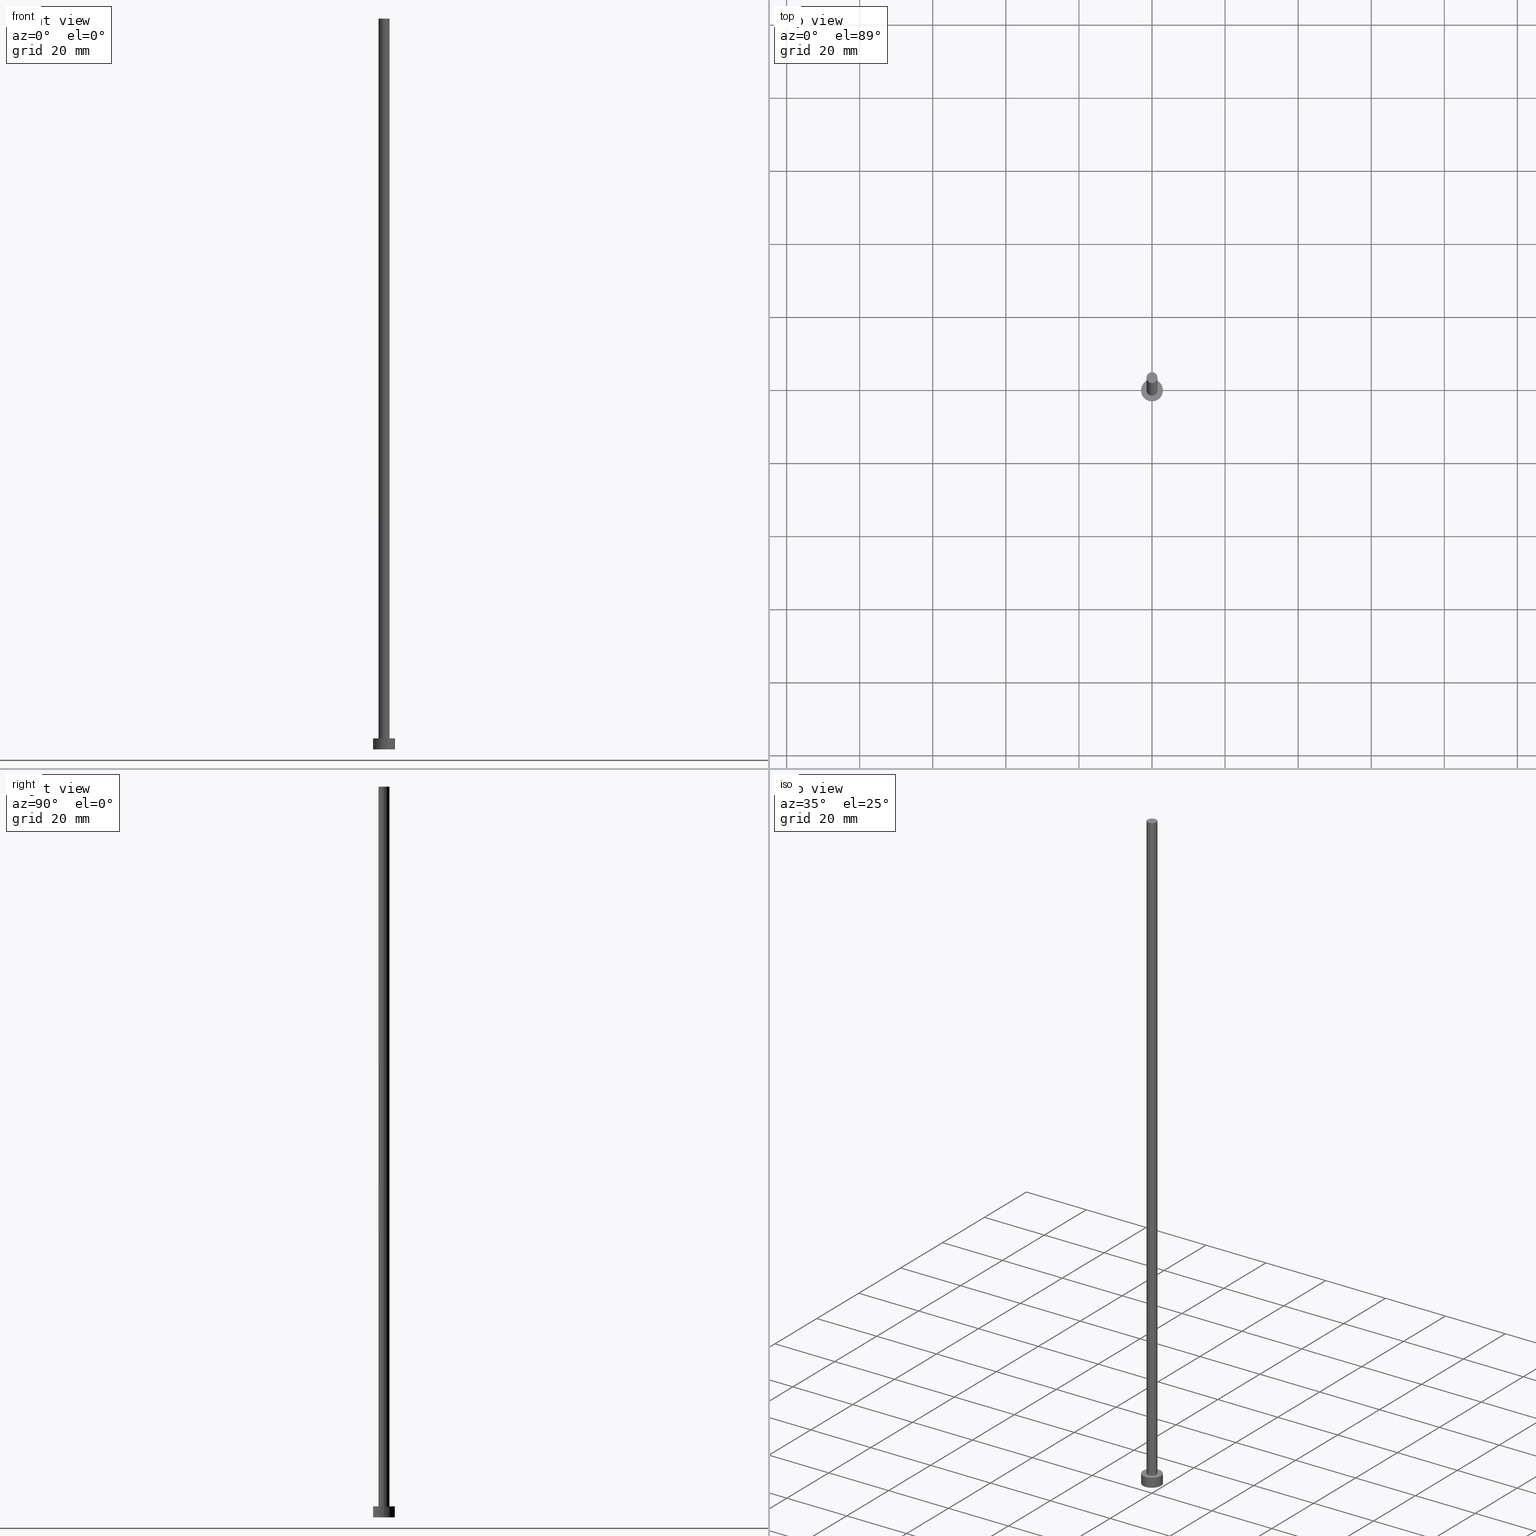
[diagram: canonical four-view strip — front | top / right | iso, engineering-drawing reading convention]
A machine part, canonical four-view strip (front | top / right | iso — engineering-drawing reading convention). The complete STEP part file that produces these views, byte-faithful:
ISO-10303-21;
HEADER;
FILE_DESCRIPTION (( 'STEP AP203' ),
    '1' );
FILE_NAME ('0927.STEP',
    '2023-02-13T15:37:24',
    ( '' ),
    ( '' ),
    'SwSTEP 2.0',
    'SolidWorks 2019',
    '' );
FILE_SCHEMA (( 'CONFIG_CONTROL_DESIGN' ));
ENDSEC;

DATA;
#1 = DATE_AND_TIME ( #216, #170 ) ;
#2 = ORIENTED_EDGE ( 'NONE', *, *, #190, .T. ) ;
#3 = CIRCLE ( 'NONE', #89, 1.500000000000000222 ) ;
#4 = PERSON_AND_ORGANIZATION ( #114, #75 ) ;
#5 = CARTESIAN_POINT ( 'NONE',  ( 1.500000000000000222, 1.836970198721030181E-16, 200.0000000000000000 ) ) ;
#6 = VERTEX_POINT ( 'NONE', #5 ) ;
#7 = DIRECTION ( 'NONE',  ( 1.000000000000000000, 0.000000000000000000, 0.000000000000000000 ) ) ;
#8 = DIRECTION ( 'NONE',  ( -1.000000000000000000, 0.000000000000000000, 0.000000000000000000 ) ) ;
#9 = APPROVAL_PERSON_ORGANIZATION ( #172, #206, #103 ) ;
#10 = DIRECTION ( 'NONE',  ( 0.000000000000000000, 0.000000000000000000, 1.000000000000000000 ) ) ;
#11 = CARTESIAN_POINT ( 'NONE',  ( -1.500000000000000222, 0.000000000000000000, 200.0000000000000000 ) ) ;
#12 = CARTESIAN_POINT ( 'NONE',  ( -1.500000000000000222, 0.000000000000000000, 200.0000000000000000 ) ) ;
#13 = AXIS2_PLACEMENT_3D ( 'NONE', #248, #10, #78 ) ;
#14 = EDGE_LOOP ( 'NONE', ( #128, #155 ) ) ;
#15 = APPROVAL_STATUS ( 'not_yet_approved' ) ;
#16 = ORIENTED_EDGE ( 'NONE', *, *, #72, .T. ) ;
#17 = DIRECTION ( 'NONE',  ( -0.000000000000000000, -0.000000000000000000, -1.000000000000000000 ) ) ;
#18 = DIRECTION ( 'NONE',  ( -0.000000000000000000, -0.000000000000000000, -1.000000000000000000 ) ) ;
#19 = EDGE_CURVE ( 'NONE', #68, #195, #31, .T. ) ;
#20 = ORIENTED_EDGE ( 'NONE', *, *, #108, .F. ) ;
#21 = COORDINATED_UNIVERSAL_TIME_OFFSET ( 1, 0, .AHEAD. ) ;
#22 = CIRCLE ( 'NONE', #166, 3.000000000000000444 ) ;
#23 = CC_DESIGN_PERSON_AND_ORGANIZATION_ASSIGNMENT ( #111, #113, ( #231 ) ) ;
#24 = ORIENTED_EDGE ( 'NONE', *, *, #108, .T. ) ;
#25 = CARTESIAN_POINT ( 'NONE',  ( 0.000000000000000000, 0.000000000000000000, 0.000000000000000000 ) ) ;
#26 = EDGE_CURVE ( 'NONE', #40, #90, #22, .T. ) ;
#27 = DIRECTION ( 'NONE',  ( 1.000000000000000000, 0.000000000000000000, -0.000000000000000000 ) ) ;
#28 = CYLINDRICAL_SURFACE ( 'NONE', #236, 3.000000000000000444 ) ;
#29 = APPROVAL ( #178, 'NEUR�EN�' ) ;
#30 = PLANE ( 'NONE',  #185 ) ;
#31 = LINE ( 'NONE', #11, #122 ) ;
#32 = APPROVAL_DATE_TIME ( #87, #206 ) ;
#33 = PRODUCT_DEFINITION_SHAPE ( 'NONE', 'NONE',  #219 ) ;
#34 = APPROVAL_ROLE ( '' ) ;
#35 = DIRECTION ( 'NONE',  ( 1.000000000000000000, 0.000000000000000000, 0.000000000000000000 ) ) ;
#36 = ADVANCED_FACE ( 'NONE', ( #117, #115 ), #30, .T. ) ;
#37 = COORDINATED_UNIVERSAL_TIME_OFFSET ( 1, 0, .AHEAD. ) ;
#38 = ORIENTED_EDGE ( 'NONE', *, *, #210, .F. ) ;
#39 = ORIENTED_EDGE ( 'NONE', *, *, #85, .T. ) ;
#40 = VERTEX_POINT ( 'NONE', #143 ) ;
#41 = CIRCLE ( 'NONE', #186, 3.000000000000000444 ) ;
#42 = DIRECTION ( 'NONE',  ( 0.000000000000000000, 0.000000000000000000, 1.000000000000000000 ) ) ;
#43 = CYLINDRICAL_SURFACE ( 'NONE', #66, 3.000000000000000444 ) ;
#44 = DIRECTION ( 'NONE',  ( -0.000000000000000000, -0.000000000000000000, -1.000000000000000000 ) ) ;
#45 = SECURITY_CLASSIFICATION ( '', '', #56 ) ;
#46 = CARTESIAN_POINT ( 'NONE',  ( 3.000000000000000444, 3.673940397442060361E-16, 3.000000000000000000 ) ) ;
#47 = CARTESIAN_POINT ( 'NONE',  ( 0.000000000000000000, 0.000000000000000000, 200.0000000000000000 ) ) ;
#48 =( LENGTH_UNIT ( ) NAMED_UNIT ( * ) SI_UNIT ( .MILLI., .METRE. ) );
#49 = ADVANCED_BREP_SHAPE_REPRESENTATION ( '0927', ( #83, #196 ), #192 ) ;
#50 = CARTESIAN_POINT ( 'NONE',  ( -1.500000000000000222, 0.000000000000000000, 3.000000000000000000 ) ) ;
#51 = CC_DESIGN_PERSON_AND_ORGANIZATION_ASSIGNMENT ( #4, #106, ( #45 ) ) ;
#52 = DATE_TIME_ROLE ( 'creation_date' ) ;
#53 = DIRECTION ( 'NONE',  ( -1.000000000000000000, 0.000000000000000000, 0.000000000000000000 ) ) ;
#54 = DATE_TIME_ROLE ( 'classification_date' ) ;
#55 = ADVANCED_FACE ( 'NONE', ( #60 ), #43, .T. ) ;
#56 = SECURITY_CLASSIFICATION_LEVEL ( 'unclassified' ) ;
#57 = CARTESIAN_POINT ( 'NONE',  ( 0.000000000000000000, 0.000000000000000000, 200.0000000000000000 ) ) ;
#58 = DIRECTION ( 'NONE',  ( 0.000000000000000000, 0.000000000000000000, 1.000000000000000000 ) ) ;
#59 = EDGE_CURVE ( 'NONE', #199, #110, #253, .T. ) ;
#60 = FACE_OUTER_BOUND ( 'NONE', #214, .T. ) ;
#61 = CARTESIAN_POINT ( 'NONE',  ( 0.000000000000000000, 0.000000000000000000, 0.000000000000000000 ) ) ;
#62 = PERSON_AND_ORGANIZATION_ROLE ( 'creator' ) ;
#63 = APPLICATION_CONTEXT ( 'configuration controlled 3d designs of mechanical parts and assemblies' ) ;
#64 = CYLINDRICAL_SURFACE ( 'NONE', #135, 1.500000000000000222 ) ;
#65 = APPROVAL_PERSON_ORGANIZATION ( #71, #29, #198 ) ;
#66 = AXIS2_PLACEMENT_3D ( 'NONE', #102, #204, #187 ) ;
#67 = EDGE_CURVE ( 'NONE', #149, #195, #116, .T. ) ;
#68 = VERTEX_POINT ( 'NONE', #12 ) ;
#69 = DATE_AND_TIME ( #94, #146 ) ;
#70 = ORIENTED_EDGE ( 'NONE', *, *, #201, .F. ) ;
#71 = PERSON_AND_ORGANIZATION ( #114, #75 ) ;
#72 = EDGE_CURVE ( 'NONE', #110, #199, #156, .T. ) ;
#73 = CARTESIAN_POINT ( 'NONE',  ( 0.000000000000000000, 0.000000000000000000, 3.000000000000000000 ) ) ;
#74 = CARTESIAN_POINT ( 'NONE',  ( 0.000000000000000000, 0.000000000000000000, 3.000000000000000000 ) ) ;
#75 = ORGANIZATION ( 'NEUR�EN�', 'NEUR�EN�', '' ) ;
#76 = DIRECTION ( 'NONE',  ( 1.000000000000000000, 0.000000000000000000, 0.000000000000000000 ) ) ;
#77 = CARTESIAN_POINT ( 'NONE',  ( 0.000000000000000000, 0.000000000000000000, 3.000000000000000000 ) ) ;
#78 = DIRECTION ( 'NONE',  ( 1.000000000000000000, 0.000000000000000000, 0.000000000000000000 ) ) ;
#79 = DIRECTION ( 'NONE',  ( 0.000000000000000000, 0.000000000000000000, 1.000000000000000000 ) ) ;
#80 = CC_DESIGN_PERSON_AND_ORGANIZATION_ASSIGNMENT ( #138, #177, ( #231 ) ) ;
#81 = CLOSED_SHELL ( 'NONE', ( #142, #55, #163, #36, #118, #249, #112 ) ) ;
#82 = DIRECTION ( 'NONE',  ( -0.000000000000000000, -0.000000000000000000, -1.000000000000000000 ) ) ;
#83 = MANIFOLD_SOLID_BREP ( 'P�idat vysunut�m3', #81 ) ;
#84 = FACE_OUTER_BOUND ( 'NONE', #229, .T. ) ;
#85 = EDGE_CURVE ( 'NONE', #90, #199, #145, .T. ) ;
#86 = LOCAL_TIME ( 16, 37, 24.00000000000000000, #104 ) ;
#87 = DATE_AND_TIME ( #188, #180 ) ;
#88 = DIRECTION ( 'NONE',  ( 1.000000000000000000, 0.000000000000000000, 0.000000000000000000 ) ) ;
#89 = AXIS2_PLACEMENT_3D ( 'NONE', #191, #148, #35 ) ;
#90 = VERTEX_POINT ( 'NONE', #46 ) ;
#91 = CC_DESIGN_PERSON_AND_ORGANIZATION_ASSIGNMENT ( #232, #171, ( #228 ) ) ;
#92 = CALENDAR_DATE ( 2023, 13, 2 ) ;
#93 = ORIENTED_EDGE ( 'NONE', *, *, #59, .T. ) ;
#94 = CALENDAR_DATE ( 2023, 13, 2 ) ;
#95 = ORIENTED_EDGE ( 'NONE', *, *, #67, .F. ) ;
#96 = AXIS2_PLACEMENT_3D ( 'NONE', #205, #244, #97 ) ;
#97 = DIRECTION ( 'NONE',  ( 1.000000000000000000, 0.000000000000000000, -0.000000000000000000 ) ) ;
#98 = CARTESIAN_POINT ( 'NONE',  ( 0.000000000000000000, 0.000000000000000000, 3.000000000000000000 ) ) ;
#99 = APPLICATION_CONTEXT ( 'configuration controlled 3d designs of mechanical parts and assemblies' ) ;
#100 = DIRECTION ( 'NONE',  ( 1.000000000000000000, 0.000000000000000000, 0.000000000000000000 ) ) ;
#101 = DIRECTION ( 'NONE',  ( 0.000000000000000000, 0.000000000000000000, 1.000000000000000000 ) ) ;
#102 = CARTESIAN_POINT ( 'NONE',  ( 0.000000000000000000, 0.000000000000000000, 3.000000000000000000 ) ) ;
#103 = APPROVAL_ROLE ( '' ) ;
#104 = COORDINATED_UNIVERSAL_TIME_OFFSET ( 1, 0, .AHEAD. ) ;
#105 = ORIENTED_EDGE ( 'NONE', *, *, #210, .T. ) ;
#106 = PERSON_AND_ORGANIZATION_ROLE ( 'classification_officer' ) ;
#107 = ORIENTED_EDGE ( 'NONE', *, *, #26, .F. ) ;
#108 = EDGE_CURVE ( 'NONE', #90, #40, #41, .T. ) ;
#109 = CC_DESIGN_SECURITY_CLASSIFICATION ( #45, ( #231 ) ) ;
#110 = VERTEX_POINT ( 'NONE', #123 ) ;
#111 = PERSON_AND_ORGANIZATION ( #114, #75 ) ;
#112 = ADVANCED_FACE ( 'NONE', ( #162 ), #121, .T. ) ;
#113 = PERSON_AND_ORGANIZATION_ROLE ( 'design_supplier' ) ;
#114 = PERSON ( 'NEUR�EN�', 'NEUR�EN�', 'NEUR�EN�', ('NEUR�EN�'), ('NEUR�EN�'), ('NEUR�EN�') ) ;
#115 = FACE_OUTER_BOUND ( 'NONE', #243, .T. ) ;
#116 = CIRCLE ( 'NONE', #13, 1.500000000000000222 ) ;
#117 = FACE_BOUND ( 'NONE', #203, .T. ) ;
#118 = ADVANCED_FACE ( 'NONE', ( #207 ), #208, .F. ) ;
#119 = DIRECTION ( 'NONE',  ( 1.000000000000000000, 0.000000000000000000, -0.000000000000000000 ) ) ;
#120 = APPROVAL_PERSON_ORGANIZATION ( #129, #151, #34 ) ;
#121 = PLANE ( 'NONE',  #96 ) ;
#122 = VECTOR ( 'NONE', #221, 1000.000000000000000 ) ;
#123 = CARTESIAN_POINT ( 'NONE',  ( -3.000000000000000444, 0.000000000000000000, 0.000000000000000000 ) ) ;
#124 = CARTESIAN_POINT ( 'NONE',  ( 0.000000000000000000, 0.000000000000000000, 0.000000000000000000 ) ) ;
#125 = EDGE_LOOP ( 'NONE', ( #139, #179 ) ) ;
#126 = COORDINATED_UNIVERSAL_TIME_OFFSET ( 1, 0, .AHEAD. ) ;
#127 = CC_DESIGN_DATE_AND_TIME_ASSIGNMENT ( #251, #52, ( #219 ) ) ;
#128 = ORIENTED_EDGE ( 'NONE', *, *, #227, .T. ) ;
#129 = PERSON_AND_ORGANIZATION ( #114, #75 ) ;
#130 = DIRECTION ( 'NONE',  ( 1.000000000000000000, 0.000000000000000000, 0.000000000000000000 ) ) ;
#131 = LOCAL_TIME ( 16, 37, 24.00000000000000000, #126 ) ;
#132 = CARTESIAN_POINT ( 'NONE',  ( 0.000000000000000000, 0.000000000000000000, 3.000000000000000000 ) ) ;
#133 = CC_DESIGN_PERSON_AND_ORGANIZATION_ASSIGNMENT ( #250, #62, ( #219 ) ) ;
#134 = ORIENTED_EDGE ( 'NONE', *, *, #67, .T. ) ;
#135 = AXIS2_PLACEMENT_3D ( 'NONE', #215, #17, #53 ) ;
#136 = CC_DESIGN_DATE_AND_TIME_ASSIGNMENT ( #1, #54, ( #45 ) ) ;
#137 = AXIS2_PLACEMENT_3D ( 'NONE', #25, #247, #167 ) ;
#138 = PERSON_AND_ORGANIZATION ( #114, #75 ) ;
#139 = ORIENTED_EDGE ( 'NONE', *, *, #72, .F. ) ;
#140 = CYLINDRICAL_SURFACE ( 'NONE', #222, 1.500000000000000222 ) ;
#141 = VECTOR ( 'NONE', #18, 1000.000000000000000 ) ;
#142 = ADVANCED_FACE ( 'NONE', ( #165 ), #140, .T. ) ;
#143 = CARTESIAN_POINT ( 'NONE',  ( -3.000000000000000444, 0.000000000000000000, 3.000000000000000000 ) ) ;
#144 = FACE_OUTER_BOUND ( 'NONE', #239, .T. ) ;
#145 = LINE ( 'NONE', #169, #235 ) ;
#146 = LOCAL_TIME ( 16, 37, 24.00000000000000000, #157 ) ;
#147 = DIRECTION ( 'NONE',  ( -0.000000000000000000, -0.000000000000000000, -1.000000000000000000 ) ) ;
#148 = DIRECTION ( 'NONE',  ( 0.000000000000000000, 0.000000000000000000, 1.000000000000000000 ) ) ;
#149 = VERTEX_POINT ( 'NONE', #226 ) ;
#150 = CARTESIAN_POINT ( 'NONE',  ( 1.500000000000000222, 1.836970198721030181E-16, 200.0000000000000000 ) ) ;
#151 = APPROVAL ( #213, 'NEUR�EN�' ) ;
#152 = ORIENTED_EDGE ( 'NONE', *, *, #201, .T. ) ;
#153 =( NAMED_UNIT ( * ) PLANE_ANGLE_UNIT ( ) SI_UNIT ( $, .RADIAN. ) );
#154 =( NAMED_UNIT ( * ) SI_UNIT ( $, .STERADIAN. ) SOLID_ANGLE_UNIT ( ) );
#155 = ORIENTED_EDGE ( 'NONE', *, *, #168, .T. ) ;
#156 = CIRCLE ( 'NONE', #175, 3.000000000000000444 ) ;
#157 = COORDINATED_UNIVERSAL_TIME_OFFSET ( 1, 0, .AHEAD. ) ;
#158 = ORIENTED_EDGE ( 'NONE', *, *, #85, .F. ) ;
#159 = DESIGN_CONTEXT ( 'detailed design', #99, 'design' ) ;
#160 = SHAPE_DEFINITION_REPRESENTATION ( #33, #49 ) ;
#161 = EDGE_LOOP ( 'NONE', ( #181, #2, #134, #197 ) ) ;
#162 = FACE_OUTER_BOUND ( 'NONE', #14, .T. ) ;
#163 = ADVANCED_FACE ( 'NONE', ( #144 ), #28, .T. ) ;
#164 = DIRECTION ( 'NONE',  ( -0.000000000000000000, -0.000000000000000000, -1.000000000000000000 ) ) ;
#165 = FACE_OUTER_BOUND ( 'NONE', #161, .T. ) ;
#166 = AXIS2_PLACEMENT_3D ( 'NONE', #77, #42, #224 ) ;
#167 = DIRECTION ( 'NONE',  ( 1.000000000000000000, 0.000000000000000000, 0.000000000000000000 ) ) ;
#168 = EDGE_CURVE ( 'NONE', #6, #68, #200, .T. ) ;
#169 = CARTESIAN_POINT ( 'NONE',  ( 3.000000000000000444, 3.673940397442060361E-16, 3.000000000000000000 ) ) ;
#170 = LOCAL_TIME ( 16, 37, 24.00000000000000000, #21 ) ;
#171 = PERSON_AND_ORGANIZATION_ROLE ( 'design_owner' ) ;
#172 = PERSON_AND_ORGANIZATION ( #114, #75 ) ;
#173 = ORIENTED_EDGE ( 'NONE', *, *, #227, .F. ) ;
#174 = CARTESIAN_POINT ( 'NONE',  ( -3.000000000000000444, 0.000000000000000000, 3.000000000000000000 ) ) ;
#175 = AXIS2_PLACEMENT_3D ( 'NONE', #182, #225, #7 ) ;
#176 = LINE ( 'NONE', #174, #141 ) ;
#177 = PERSON_AND_ORGANIZATION_ROLE ( 'creator' ) ;
#178 = APPROVAL_STATUS ( 'not_yet_approved' ) ;
#179 = ORIENTED_EDGE ( 'NONE', *, *, #59, .F. ) ;
#180 = LOCAL_TIME ( 16, 37, 24.00000000000000000, #37 ) ;
#181 = ORIENTED_EDGE ( 'NONE', *, *, #168, .F. ) ;
#182 = CARTESIAN_POINT ( 'NONE',  ( 0.000000000000000000, 0.000000000000000000, 0.000000000000000000 ) ) ;
#183 = DIRECTION ( 'NONE',  ( 0.000000000000000000, 0.000000000000000000, 1.000000000000000000 ) ) ;
#184 = LINE ( 'NONE', #150, #211 ) ;
#185 = AXIS2_PLACEMENT_3D ( 'NONE', #98, #183, #119 ) ;
#186 = AXIS2_PLACEMENT_3D ( 'NONE', #73, #101, #76 ) ;
#187 = DIRECTION ( 'NONE',  ( -1.000000000000000000, 0.000000000000000000, 0.000000000000000000 ) ) ;
#188 = CALENDAR_DATE ( 2023, 13, 2 ) ;
#189 = DIRECTION ( 'NONE',  ( 0.000000000000000000, 0.000000000000000000, 1.000000000000000000 ) ) ;
#190 = EDGE_CURVE ( 'NONE', #6, #149, #184, .T. ) ;
#191 = CARTESIAN_POINT ( 'NONE',  ( 0.000000000000000000, 0.000000000000000000, 200.0000000000000000 ) ) ;
#192 =( GEOMETRIC_REPRESENTATION_CONTEXT ( 3 ) GLOBAL_UNCERTAINTY_ASSIGNED_CONTEXT ( ( #240 ) ) GLOBAL_UNIT_ASSIGNED_CONTEXT ( ( #48, #153, #154 ) ) REPRESENTATION_CONTEXT ( 'NONE', 'WORKASPACE' ) );
#193 = AXIS2_PLACEMENT_3D ( 'NONE', #61, #58, #27 ) ;
#194 = APPROVAL_DATE_TIME ( #218, #151 ) ;
#195 = VERTEX_POINT ( 'NONE', #50 ) ;
#196 = AXIS2_PLACEMENT_3D ( 'NONE', #124, #79, #88 ) ;
#197 = ORIENTED_EDGE ( 'NONE', *, *, #19, .F. ) ;
#198 = APPROVAL_ROLE ( '' ) ;
#199 = VERTEX_POINT ( 'NONE', #209 ) ;
#200 = CIRCLE ( 'NONE', #254, 1.500000000000000222 ) ;
#201 = EDGE_CURVE ( 'NONE', #195, #149, #202, .T. ) ;
#202 = CIRCLE ( 'NONE', #245, 1.500000000000000222 ) ;
#203 = EDGE_LOOP ( 'NONE', ( #70, #95 ) ) ;
#204 = DIRECTION ( 'NONE',  ( -0.000000000000000000, -0.000000000000000000, -1.000000000000000000 ) ) ;
#205 = CARTESIAN_POINT ( 'NONE',  ( 0.000000000000000000, 0.000000000000000000, 200.0000000000000000 ) ) ;
#206 = APPROVAL ( #15, 'NEUR�EN�' ) ;
#207 = FACE_OUTER_BOUND ( 'NONE', #125, .T. ) ;
#208 = PLANE ( 'NONE',  #193 ) ;
#209 = CARTESIAN_POINT ( 'NONE',  ( 3.000000000000000444, 3.673940397442060361E-16, 0.000000000000000000 ) ) ;
#210 = EDGE_CURVE ( 'NONE', #40, #110, #176, .T. ) ;
#211 = VECTOR ( 'NONE', #82, 1000.000000000000000 ) ;
#212 = CALENDAR_DATE ( 2023, 13, 2 ) ;
#213 = APPROVAL_STATUS ( 'not_yet_approved' ) ;
#214 = EDGE_LOOP ( 'NONE', ( #20, #39, #93, #38 ) ) ;
#215 = CARTESIAN_POINT ( 'NONE',  ( 0.000000000000000000, 0.000000000000000000, 200.0000000000000000 ) ) ;
#216 = CALENDAR_DATE ( 2023, 13, 2 ) ;
#217 = ORIENTED_EDGE ( 'NONE', *, *, #26, .T. ) ;
#218 = DATE_AND_TIME ( #92, #86 ) ;
#219 = PRODUCT_DEFINITION ( 'NEZN�M�', '', #231, #159 ) ;
#220 = CC_DESIGN_APPROVAL ( #29, ( #45 ) ) ;
#221 = DIRECTION ( 'NONE',  ( -0.000000000000000000, -0.000000000000000000, -1.000000000000000000 ) ) ;
#222 = AXIS2_PLACEMENT_3D ( 'NONE', #47, #147, #8 ) ;
#223 = DIRECTION ( 'NONE',  ( 0.000000000000000000, 0.000000000000000000, 1.000000000000000000 ) ) ;
#224 = DIRECTION ( 'NONE',  ( 1.000000000000000000, 0.000000000000000000, 0.000000000000000000 ) ) ;
#225 = DIRECTION ( 'NONE',  ( 0.000000000000000000, 0.000000000000000000, 1.000000000000000000 ) ) ;
#226 = CARTESIAN_POINT ( 'NONE',  ( 1.500000000000000222, 1.836970198721030181E-16, 3.000000000000000000 ) ) ;
#227 = EDGE_CURVE ( 'NONE', #68, #6, #3, .T. ) ;
#228 = PRODUCT ( '0927', '0927', '', ( #255 ) ) ;
#229 = EDGE_LOOP ( 'NONE', ( #242, #173, #234, #152 ) ) ;
#230 = APPLICATION_PROTOCOL_DEFINITION ( 'international standard', 'config_control_design', 1994, #63 ) ;
#231 = PRODUCT_DEFINITION_FORMATION_WITH_SPECIFIED_SOURCE ( 'LIBOVOLN�', '', #228, .NOT_KNOWN. ) ;
#232 = PERSON_AND_ORGANIZATION ( #114, #75 ) ;
#233 = PRODUCT_RELATED_PRODUCT_CATEGORY ( 'detail', '', ( #228 ) ) ;
#234 = ORIENTED_EDGE ( 'NONE', *, *, #19, .T. ) ;
#235 = VECTOR ( 'NONE', #44, 1000.000000000000000 ) ;
#236 = AXIS2_PLACEMENT_3D ( 'NONE', #74, #164, #246 ) ;
#237 = APPLICATION_PROTOCOL_DEFINITION ( 'international standard', 'config_control_design', 1994, #99 ) ;
#238 = APPROVAL_DATE_TIME ( #69, #29 ) ;
#239 = EDGE_LOOP ( 'NONE', ( #158, #107, #105, #16 ) ) ;
#240 = UNCERTAINTY_MEASURE_WITH_UNIT (LENGTH_MEASURE( 1.000000000000000082E-05 ), #48, 'distance_accuracy_value', 'NONE');
#241 = CC_DESIGN_APPROVAL ( #206, ( #219 ) ) ;
#242 = ORIENTED_EDGE ( 'NONE', *, *, #190, .F. ) ;
#243 = EDGE_LOOP ( 'NONE', ( #217, #24 ) ) ;
#244 = DIRECTION ( 'NONE',  ( 0.000000000000000000, 0.000000000000000000, 1.000000000000000000 ) ) ;
#245 = AXIS2_PLACEMENT_3D ( 'NONE', #132, #189, #130 ) ;
#246 = DIRECTION ( 'NONE',  ( -1.000000000000000000, 0.000000000000000000, 0.000000000000000000 ) ) ;
#247 = DIRECTION ( 'NONE',  ( 0.000000000000000000, 0.000000000000000000, 1.000000000000000000 ) ) ;
#248 = CARTESIAN_POINT ( 'NONE',  ( 0.000000000000000000, 0.000000000000000000, 3.000000000000000000 ) ) ;
#249 = ADVANCED_FACE ( 'NONE', ( #84 ), #64, .T. ) ;
#250 = PERSON_AND_ORGANIZATION ( #114, #75 ) ;
#251 = DATE_AND_TIME ( #212, #131 ) ;
#252 = CC_DESIGN_APPROVAL ( #151, ( #231 ) ) ;
#253 = CIRCLE ( 'NONE', #137, 3.000000000000000444 ) ;
#254 = AXIS2_PLACEMENT_3D ( 'NONE', #57, #223, #100 ) ;
#255 = MECHANICAL_CONTEXT ( 'NONE', #63, 'mechanical' ) ;
ENDSEC;
END-ISO-10303-21;
